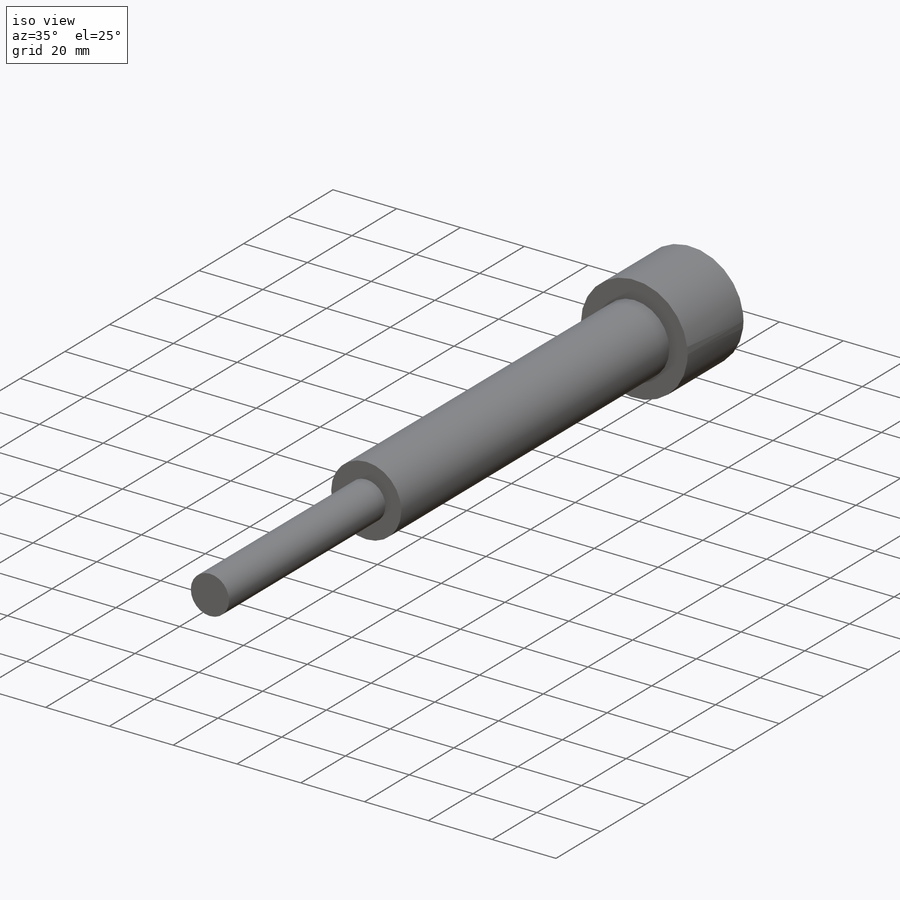
[diagram: iso view]
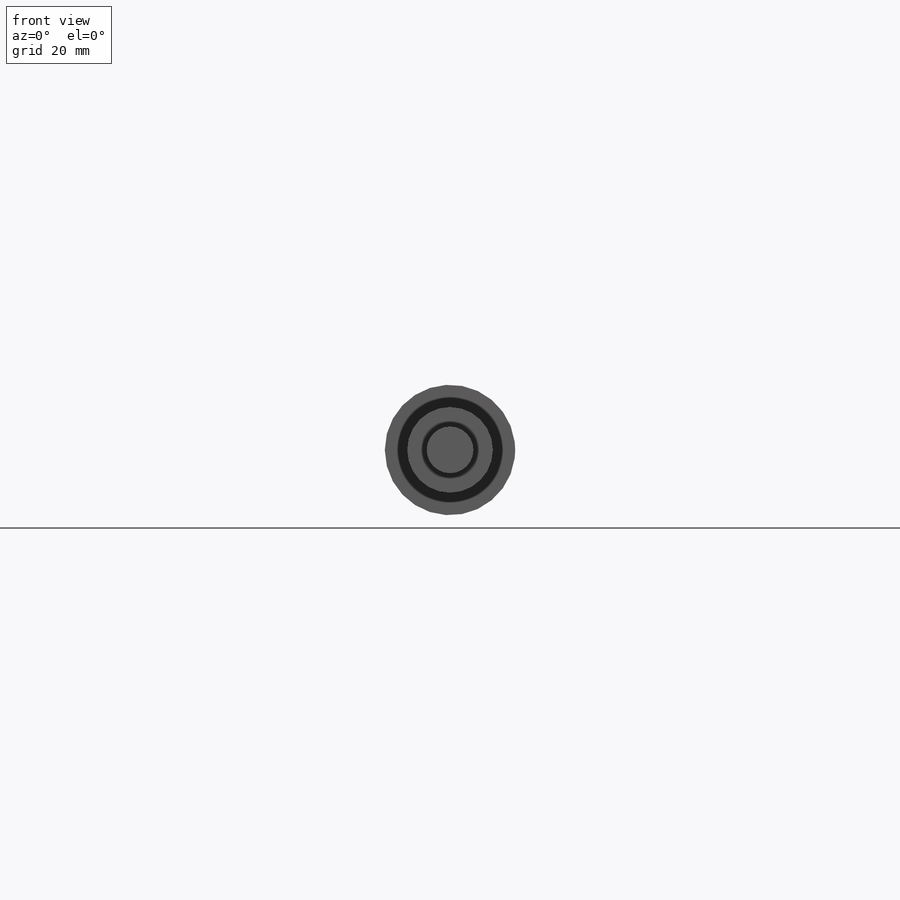
[diagram: front view]
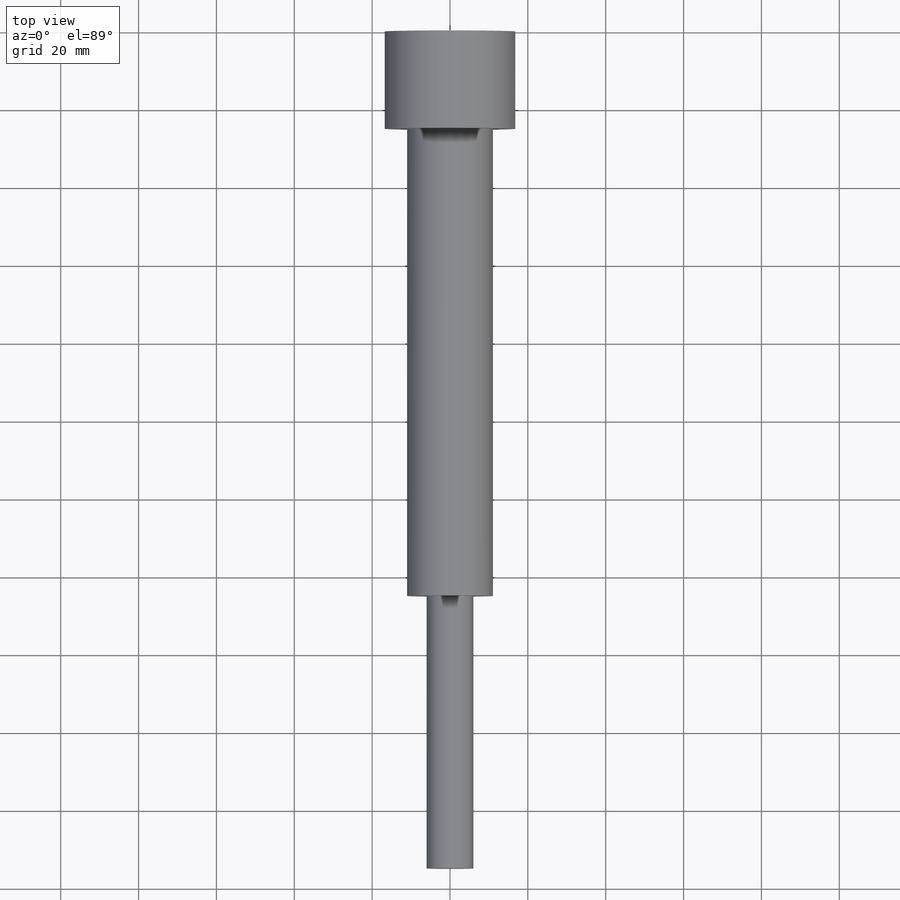
[diagram: top view]
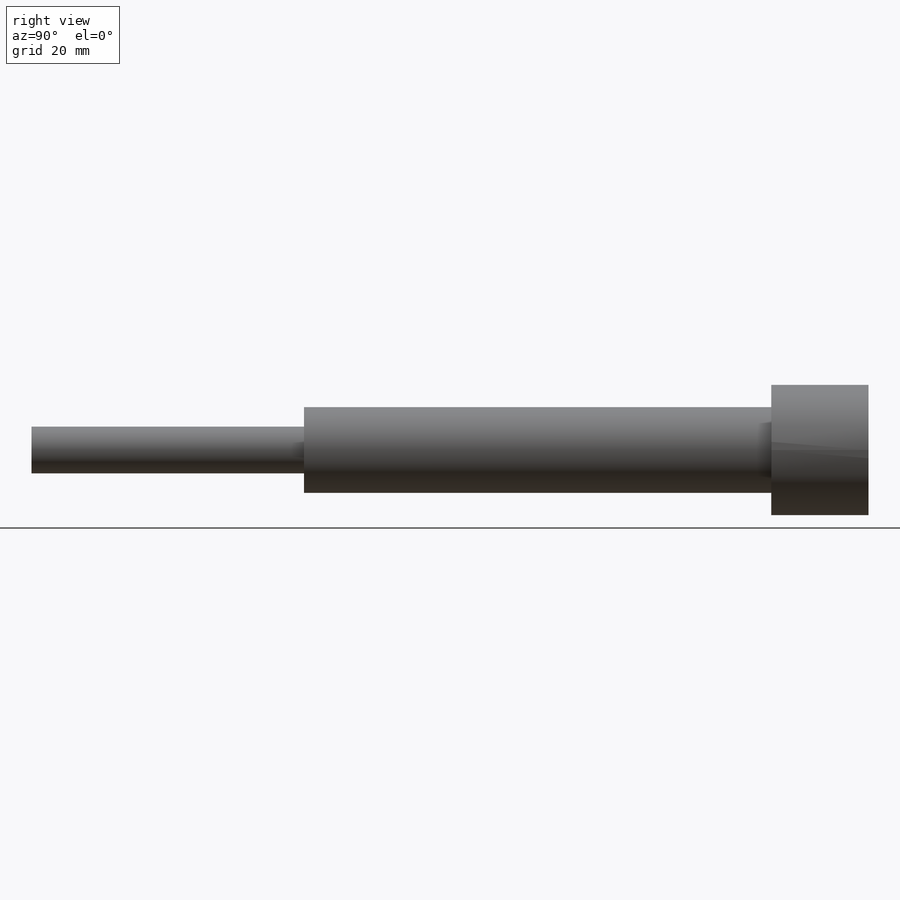
[diagram: right view]
SOLIDWORKS PART (.sldprt)
format: sldprt  version: not decoded by parser v0  size: 227,328 bytes
history: native  units: mm
features: plane x3, sketch x3, extrude x3, material x1 (+10 scaffold rows collapsed)
feature tree (20):
  scaffold x10  (default folders/planes/origin — collapsed)
  material  "Material <sin especificar>"
  plane  "Alzado"
  plane  "Planta"
  plane  "Vista lateral"
  sketch  "Croquis1"  dims[D1=33.5mm]
  extrude  "Saliente-Extruir1"  Depth=25mm
  sketch  "Croquis2"  dims[D1=22.0mm]
  extrude  "Saliente-Extruir3"  Depth=120mm
  sketch  "Croquis3"  dims[12=12.0mm]
  extrude  "Saliente-Extruir4"  Depth=70mm
decode coverage: 6 of 6 modeling features carry decoded parameters
note: suppression state not decoded; provenance and decode notes live in map.json
